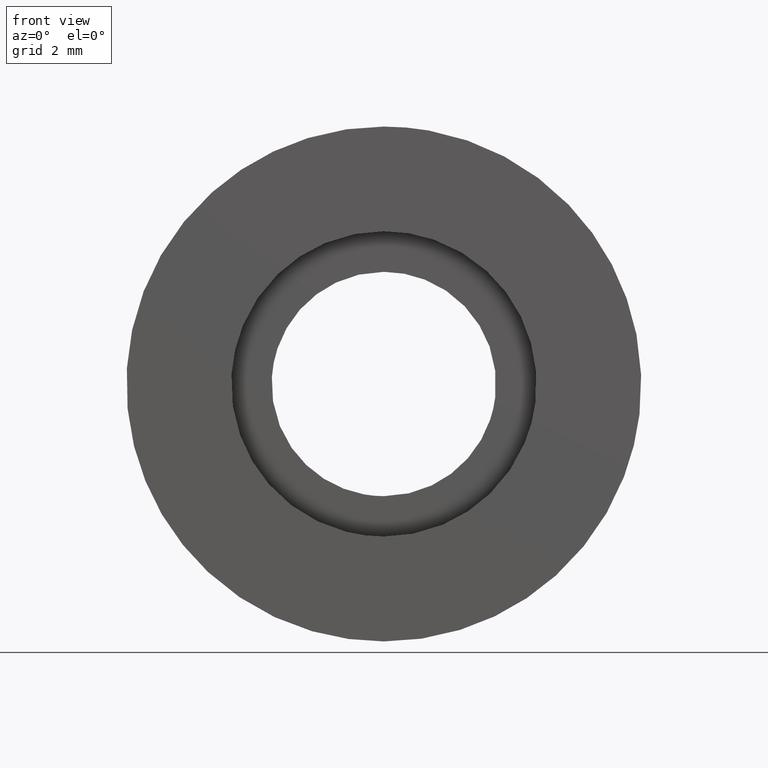
[diagram: clean part render]
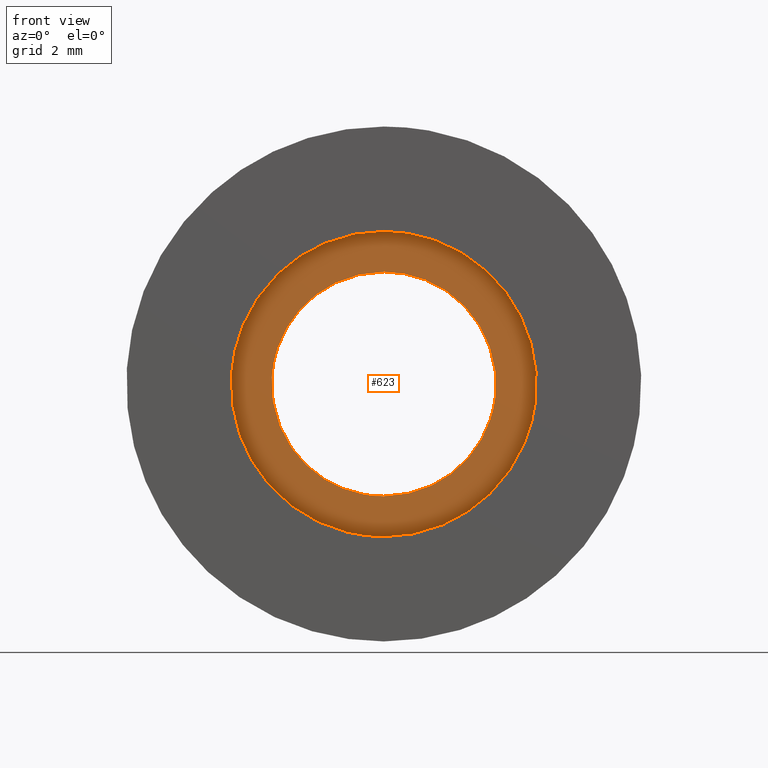
[diagram: same view with one face highlighted and labeled with its STEP entity id]
A machine part, front view. The second image highlights one B-rep face of the part: STEP entity #623.
In plain terms, the highlighted face is a freeform B-spline surface patch.
Its self-contained STEP definition (entity closure, byte-faithful):
#66=CARTESIAN_POINT('',(4.120992084721502,-1.000000000000042,-0.489837562508097));
#67=VERTEX_POINT('',#66);
#68=CARTESIAN_POINT('',(0.0,-1.0,4.150002000000000));
#69=VERTEX_POINT('',#68);
#70=CARTESIAN_POINT('',(4.120992084721502,-1.000000000000042,-0.489837562508097));
#71=CARTESIAN_POINT('',(4.150002000000001,-1.0,-0.245777816216738));
#72=CARTESIAN_POINT('',(4.150002000000000,-1.0,-2.795203E-016));
#73=CARTESIAN_POINT('',(4.150002000000000,-1.0,4.150002000000000));
#74=CARTESIAN_POINT('',(0.0,-1.0,4.150002000000000));
#82=(BOUNDED_CURVE()B_SPLINE_CURVE(2,(#70,#71,#72,#73,#74),.UNSPECIFIED.,.F.,.U.)B_SPLINE_CURVE_WITH_KNOTS((3,2,3),(0.229562668207552,0.250000000000000,0.500000000000000),.UNSPECIFIED.)CURVE()GEOMETRIC_REPRESENTATION_ITEM()RATIONAL_B_SPLINE_CURVE((0.956027135792348,0.976056176429406,1.0,0.707106781186547,1.0))REPRESENTATION_ITEM(''));
#83=EDGE_CURVE('',#67,#69,#82,.T.);
#124=CARTESIAN_POINT('',(-4.142261720703038,-0.999999999999970,0.253346476542214));
#125=VERTEX_POINT('',#124);
#131=CARTESIAN_POINT('',(0.0,-1.0,4.150002000000000));
#132=CARTESIAN_POINT('',(-3.903936860103388,-1.0,4.150001999999998));
#133=CARTESIAN_POINT('',(-4.142261720703038,-0.999999999999970,0.253346476542214));
#141=(BOUNDED_CURVE()B_SPLINE_CURVE(2,(#131,#132,#133),.UNSPECIFIED.,.F.,.U.)B_SPLINE_CURVE_WITH_KNOTS((3,3),(0.500000000000000,0.739333174043130),.UNSPECIFIED.)CURVE()GEOMETRIC_REPRESENTATION_ITEM()RATIONAL_B_SPLINE_CURVE((1.0,0.719603745142670,0.976072495603829))REPRESENTATION_ITEM(''));
#142=EDGE_CURVE('',#69,#125,#141,.T.);
#165=CARTESIAN_POINT('',(0.0,-1.0,-4.150002000000000));
#166=VERTEX_POINT('',#165);
#167=CARTESIAN_POINT('',(0.0,-1.0,-4.150002000000000));
#168=CARTESIAN_POINT('',(3.685930335130786,-1.0,-4.150001999999999));
#169=CARTESIAN_POINT('',(4.120992084721502,-1.000000000000042,-0.489837562508097));
#177=(BOUNDED_CURVE()B_SPLINE_CURVE(2,(#167,#168,#169),.UNSPECIFIED.,.F.,.U.)B_SPLINE_CURVE_WITH_KNOTS((3,3),(0.0,0.229562668207552),.UNSPECIFIED.)CURVE()GEOMETRIC_REPRESENTATION_ITEM()RATIONAL_B_SPLINE_CURVE((1.0,0.731050604757142,0.956027135792348))REPRESENTATION_ITEM(''));
#178=EDGE_CURVE('',#166,#67,#177,.T.);
#180=CARTESIAN_POINT('',(-4.142261720703038,-0.999999999999970,0.253346476542214));
#181=CARTESIAN_POINT('',(-4.150002000000000,-1.0,0.126791479354253));
#182=CARTESIAN_POINT('',(-4.150002000000000,-1.0,-2.795203E-016));
#183=CARTESIAN_POINT('',(-4.150002000000000,-1.0,-4.150002000000000));
#184=CARTESIAN_POINT('',(0.0,-1.0,-4.150002000000000));
#192=(BOUNDED_CURVE()B_SPLINE_CURVE(2,(#180,#181,#182,#183,#184),.UNSPECIFIED.,.F.,.U.)B_SPLINE_CURVE_WITH_KNOTS((3,2,3),(0.739333174043130,0.750000000000000,1.0),.UNSPECIFIED.)CURVE()GEOMETRIC_REPRESENTATION_ITEM()RATIONAL_B_SPLINE_CURVE((0.976072495603829,0.987503036043877,1.0,0.707106781186547,1.0))REPRESENTATION_ITEM(''));
#193=EDGE_CURVE('',#125,#166,#192,.T.);
#256=CARTESIAN_POINT('',(3.028678228583696,-0.999999999999980,-0.360002899574624));
#257=VERTEX_POINT('',#256);
#258=CARTESIAN_POINT('',(0.0,-1.0,3.049998999999999));
#259=VERTEX_POINT('',#258);
#260=CARTESIAN_POINT('',(3.028678228583697,-0.999999999999980,-0.360002899574624));
#261=CARTESIAN_POINT('',(3.049999000000000,-1.0,-0.180632799276890));
#262=CARTESIAN_POINT('',(3.049999000000000,-1.0,-2.795203E-016));
#263=CARTESIAN_POINT('',(3.049998999999999,-1.0,3.049998999999999));
#264=CARTESIAN_POINT('',(0.0,-1.0,3.049998999999999));
#272=(BOUNDED_CURVE()B_SPLINE_CURVE(2,(#260,#261,#262,#263,#264),.UNSPECIFIED.,.F.,.U.)B_SPLINE_CURVE_WITH_KNOTS((3,2,3),(0.229562551530697,0.250000000000000,0.500000000000000),.UNSPECIFIED.)CURVE()GEOMETRIC_REPRESENTATION_ITEM()RATIONAL_B_SPLINE_CURVE((0.956026907100639,0.976056039733967,1.0,0.707106781186547,1.0))REPRESENTATION_ITEM(''));
#273=EDGE_CURVE('',#257,#259,#272,.T.);
#275=CARTESIAN_POINT('',(-3.044310423648793,-0.999999999999929,0.186193298596548));
#276=VERTEX_POINT('',#275);
#277=CARTESIAN_POINT('',(0.0,-1.0,3.049998999999999));
#278=CARTESIAN_POINT('',(-2.869156987937794,-1.0,3.049998999999999));
#279=CARTESIAN_POINT('',(-3.044310423648793,-0.999999999999929,0.186193298596548));
#287=(BOUNDED_CURVE()B_SPLINE_CURVE(2,(#277,#278,#279),.UNSPECIFIED.,.F.,.U.)B_SPLINE_CURVE_WITH_KNOTS((3,3),(0.500000000000000,0.739333227833638),.UNSPECIFIED.)CURVE()GEOMETRIC_REPRESENTATION_ITEM()RATIONAL_B_SPLINE_CURVE((1.0,0.719603682123169,0.976072610887369))REPRESENTATION_ITEM(''));
#288=EDGE_CURVE('',#259,#276,#287,.T.);
#355=CARTESIAN_POINT('',(0.0,-1.0,-3.049999000000000));
#356=VERTEX_POINT('',#355);
#357=CARTESIAN_POINT('',(0.0,-1.0,-3.049999000000000));
#358=CARTESIAN_POINT('',(2.708932675273653,-1.0,-3.049999000000000));
#359=CARTESIAN_POINT('',(3.028678228583697,-0.999999999999980,-0.360002899574624));
#367=(BOUNDED_CURVE()B_SPLINE_CURVE(2,(#357,#358,#359),.UNSPECIFIED.,.F.,.U.)B_SPLINE_CURVE_WITH_KNOTS((3,3),(0.0,0.229562551530697),.UNSPECIFIED.)CURVE()GEOMETRIC_REPRESENTATION_ITEM()RATIONAL_B_SPLINE_CURVE((1.0,0.731050741452580,0.956026907100639))REPRESENTATION_ITEM(''));
#368=EDGE_CURVE('',#356,#257,#367,.T.);
#402=CARTESIAN_POINT('',(-3.044310423648793,-0.999999999999929,0.186193298596548));
#403=CARTESIAN_POINT('',(-3.049999000000000,-1.0,0.093183547970642));
#404=CARTESIAN_POINT('',(-3.049999000000000,-1.0,-2.795203E-016));
#405=CARTESIAN_POINT('',(-3.049998999999999,-1.0,-3.049998999999999));
#406=CARTESIAN_POINT('',(0.0,-1.0,-3.049999000000000));
#414=(BOUNDED_CURVE()B_SPLINE_CURVE(2,(#402,#403,#404,#405,#406),.UNSPECIFIED.,.F.,.U.)B_SPLINE_CURVE_WITH_KNOTS((3,2,3),(0.739333227833638,0.750000000000000,1.0),.UNSPECIFIED.)CURVE()GEOMETRIC_REPRESENTATION_ITEM()RATIONAL_B_SPLINE_CURVE((0.976072610887369,0.987503099063378,1.0,0.707106781186547,1.0))REPRESENTATION_ITEM(''));
#415=EDGE_CURVE('',#276,#356,#414,.T.);
#606=CARTESIAN_POINT('',(-4.564486176353026,-1.0,4.564587183712981));
#607=CARTESIAN_POINT('',(-4.564486176353026,-1.0,-4.564587406336436));
#608=CARTESIAN_POINT('',(4.564511703842593,-1.0,4.564587183712981));
#609=CARTESIAN_POINT('',(4.564511703842593,-1.0,-4.564587406336436));
#610=B_SPLINE_SURFACE_WITH_KNOTS('',1,1,((#606,#608),(#607,#609)),.UNSPECIFIED.,.F.,.F.,.U.,(2,2),(2,2),(0.0,9.129174590049416),(0.0,9.128997880195620),.UNSPECIFIED.);
#611=ORIENTED_EDGE('',*,*,#178,.T.);
#612=ORIENTED_EDGE('',*,*,#83,.T.);
#613=ORIENTED_EDGE('',*,*,#142,.T.);
#614=ORIENTED_EDGE('',*,*,#193,.T.);
#615=EDGE_LOOP('',(#611,#612,#613,#614));
#616=FACE_OUTER_BOUND('',#615,.T.);
#617=ORIENTED_EDGE('',*,*,#288,.F.);
#618=ORIENTED_EDGE('',*,*,#273,.F.);
#619=ORIENTED_EDGE('',*,*,#368,.F.);
#620=ORIENTED_EDGE('',*,*,#415,.F.);
#621=EDGE_LOOP('',(#617,#618,#619,#620));
#622=FACE_BOUND('',#621,.T.);
#623=ADVANCED_FACE('',(#616,#622),#610,.T.);